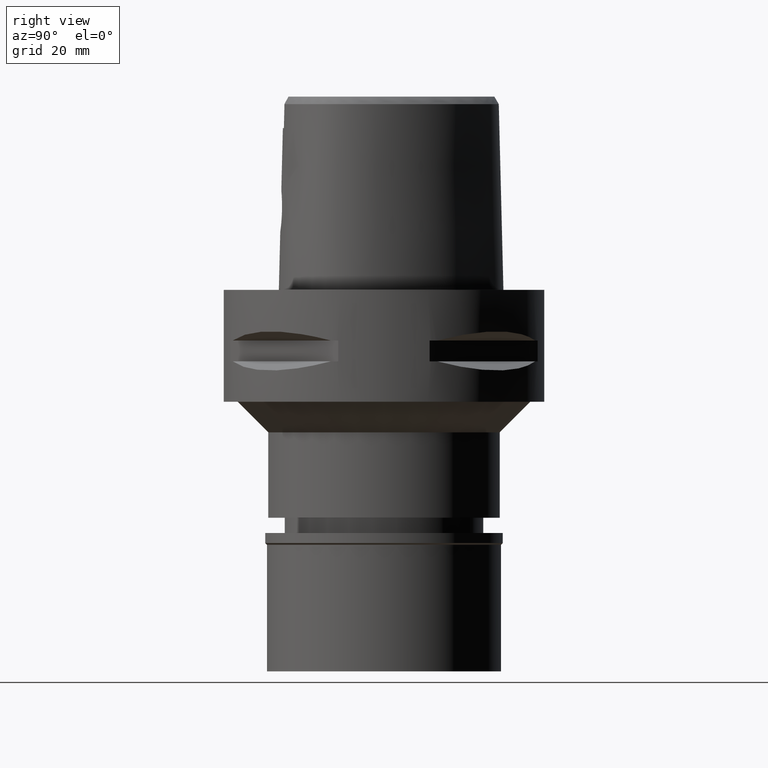
[diagram: clean part render]
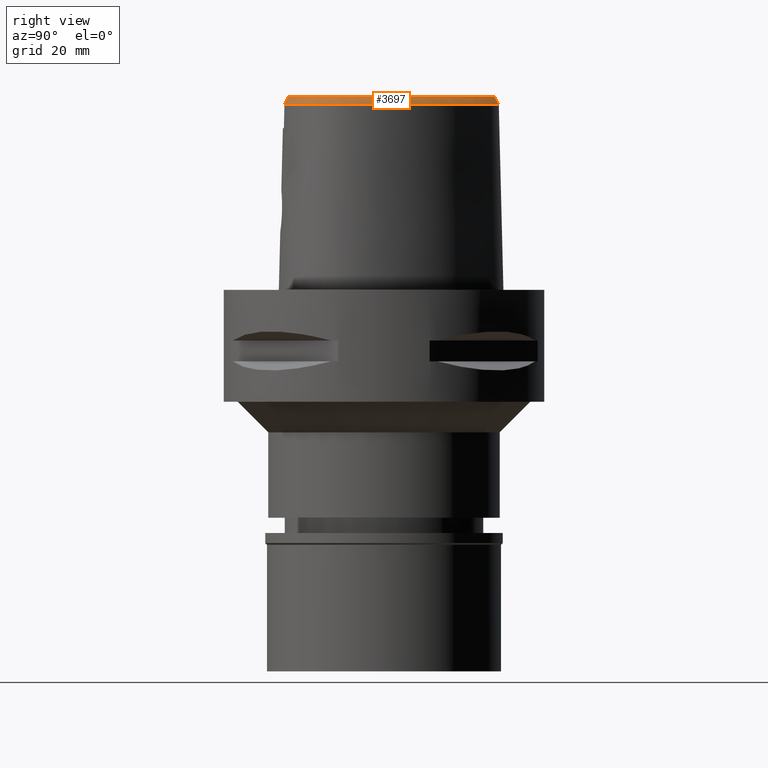
[diagram: same view with one face highlighted and labeled with its STEP entity id]
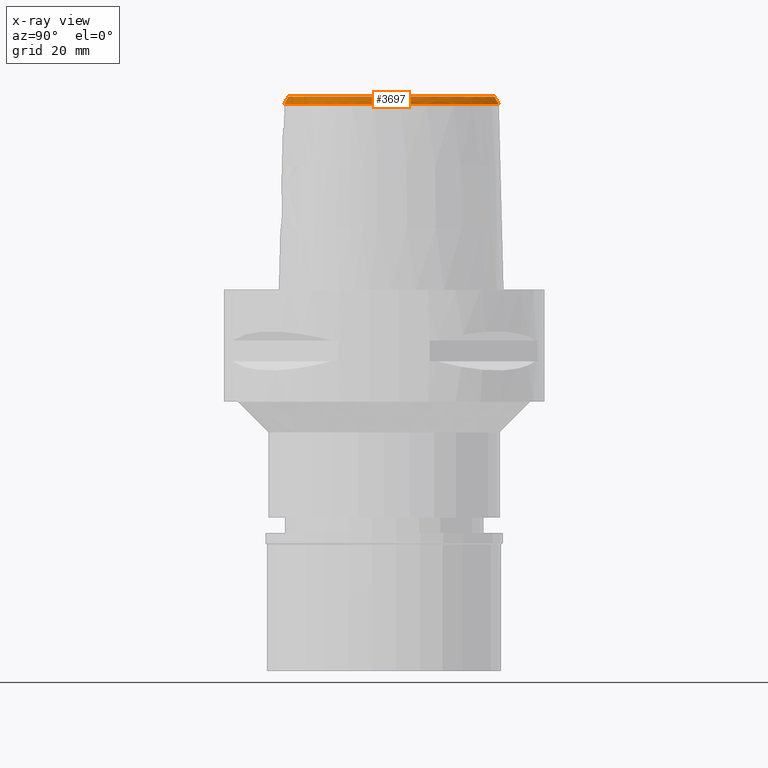
[diagram: x-ray of the same camera — body ghosted, the highlighted face saturated]
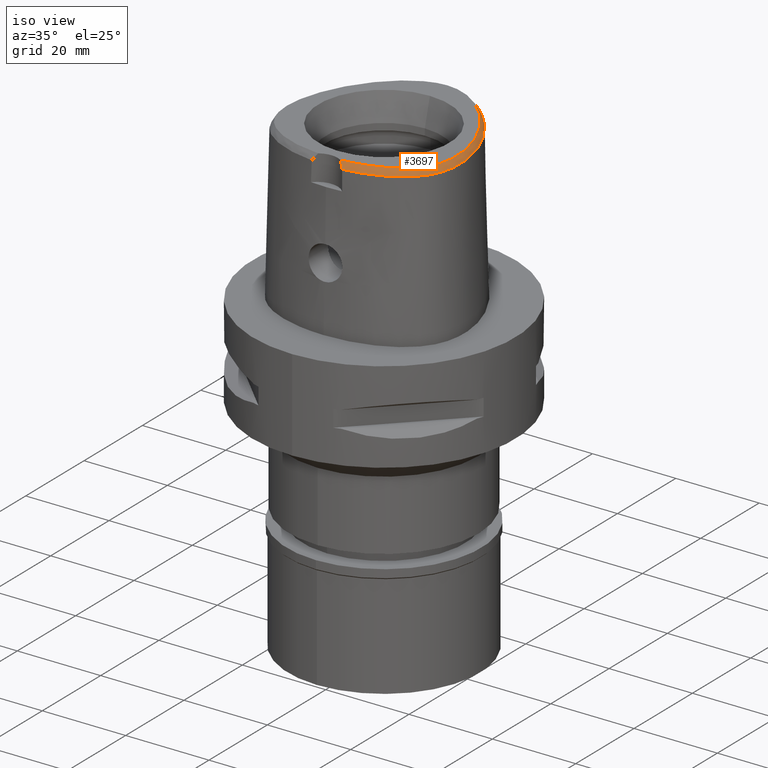
[diagram: same view with one face highlighted and labeled with its STEP entity id]
A machine part, right view. The second image highlights one B-rep face of the part: STEP entity #3697.
The next image is the same camera in x-ray: the body ghosted, the highlighted face saturated — about 0% of this face is hidden behind the body in this view.
A second angle (iso view) of the same face is appended — the face is thin or edge-on in the first view.
In plain terms, the highlighted face is a freeform B-spline surface patch.
Its self-contained STEP definition (entity closure, byte-faithful):
#13 = CARTESIAN_POINT ( 'NONE',  ( 9.524842839489272350, 17.70516372194444443, 37.99999999999801759 ) ) ;
#14 = CARTESIAN_POINT ( 'NONE',  ( 9.471721372402001293, 17.64093683689999992, 38.14078262615999648 ) ) ;
#25 = VECTOR ( 'NONE', #1910, 1000.000000000000227 ) ;
#39 = CARTESIAN_POINT ( 'NONE',  ( 8.943506038093998356, 18.93662075111999954, 36.96761958012999827 ) ) ;
#52 = CARTESIAN_POINT ( 'NONE',  ( 10.26531631301000047, -17.49315671605999967, 37.55420203895000242 ) ) ;
#59 = CARTESIAN_POINT ( 'NONE',  ( -1.463669373056000196E-11, 22.56201468012000078, 36.52186680743999858 ) ) ;
#64 = CARTESIAN_POINT ( 'NONE',  ( 4.597051437270999408, 21.76193022552000045, 36.38103846385000395 ) ) ;
#69 = CARTESIAN_POINT ( 'NONE',  ( 7.751664329830999733, -18.60205468964000275, 36.96762179697000050 ) ) ;
#82 = CARTESIAN_POINT ( 'NONE',  ( 19.54993126781647206, -9.226212439886110062, 37.99999999999429434 ) ) ;
#83 = CARTESIAN_POINT ( 'NONE',  ( 9.693055760914999652, 17.90854274288999903, 37.55420175436999841 ) ) ;
#90 = CARTESIAN_POINT ( 'NONE',  ( 3.520533512231999840, -18.62460763988000068, 38.14078268199999400 ) ) ;
#103 = CARTESIAN_POINT ( 'NONE',  ( 11.32341394162657444, -16.80569392800708073, 37.99999999998968292 ) ) ;
#110 = CARTESIAN_POINT ( 'NONE',  ( 16.53725276230999697, -13.96049793408999840, 37.55420128323000029 ) ) ;
#138 = CARTESIAN_POINT ( 'NONE',  ( 19.49712283263000145, -11.53059294735000151, 36.38103868916999772 ) ) ;
#146 = CARTESIAN_POINT ( 'NONE',  ( 3.637738219117000238, -19.56971420299000286, 36.52185956443999970 ) ) ;
#157 = CARTESIAN_POINT ( 'NONE',  ( 16.76674975263000178, -14.22119966891999887, 36.96761979151000332 ) ) ;
#163 = CARTESIAN_POINT ( 'NONE',  ( 3.637738219117000238, -19.56971420299000286, 36.52185956443999970 ) ) ;
#182 = CARTESIAN_POINT ( 'NONE',  ( 15.66942988134999837, -14.23049800799999964, 38.14078274642000110 ) ) ;
#208 = CARTESIAN_POINT ( 'NONE',  ( 14.17017414711000001, -15.27183001612999824, 38.14078271548000032 ) ) ;
#229 = CARTESIAN_POINT ( 'NONE',  ( 20.56744787855000212, -2.149473666813999539, 37.55420121531999911 ) ) ;
#251 = CARTESIAN_POINT ( 'NONE',  ( 18.48583548471999904, 5.774651732758999678, 37.55420142662999439 ) ) ;
#276 = CARTESIAN_POINT ( 'NONE',  ( 20.88061164856000218, 0.4178353032573000059, 36.38104196849000260 ) ) ;
#305 = CARTESIAN_POINT ( 'NONE',  ( 20.42078389761999802, -0.9681957962381000371, 37.55420147674000475 ) ) ;
#330 = CARTESIAN_POINT ( 'NONE',  ( 20.20009478020999794, 0.2789374243187999758, 37.55420229344999683 ) ) ;
#344 = EDGE_CURVE ( 'NONE', #3363, #1034, #4620, .T. ) ;
#359 = CARTESIAN_POINT ( 'NONE',  ( 5.167227016958999997, 20.77485208378000081, 37.55420147167000522 ) ) ;
#382 = CARTESIAN_POINT ( 'NONE',  ( 20.36412151360732281, -5.276385427453592847, 37.99999999999993605 ) ) ;
#383 = CARTESIAN_POINT ( 'NONE',  ( 1.314646726160000112, 21.52809732745000204, 38.14078280890999650 ) ) ;
#387 = CARTESIAN_POINT ( 'NONE',  ( 10.14978918589999957, -17.16566044299000282, 38.14078253627999970 ) ) ;
#403 = CARTESIAN_POINT ( 'NONE',  ( 13.33890749495810013, -15.84912955620032271, 37.99999999999144507 ) ) ;
#404 = CARTESIAN_POINT ( 'NONE',  ( 10.13572453793999806, 18.44375455487000082, 36.38104001079000227 ) ) ;
#428 = CARTESIAN_POINT ( 'NONE',  ( 14.21382211799005368, -15.34284287400429925, 37.99999999999756994 ) ) ;
#429 = CARTESIAN_POINT ( 'NONE',  ( 9.914390149427999788, 18.17614864888000170, 36.96762088258000034 ) ) ;
#434 = CARTESIAN_POINT ( 'NONE',  ( 2.131002082781999984, -19.77983292456000086, 36.38103937870999971 ) ) ;
#444 = CARTESIAN_POINT ( 'NONE',  ( 21.07429999882967664, -0.4408303635841538948, 36.52186680739944080 ) ) ;
#447 = CARTESIAN_POINT ( 'NONE',  ( 19.26272899268864336, 2.870227893749751846, 37.99999999999908340 ) ) ;
#448 = CARTESIAN_POINT ( 'NONE',  ( 5.856174692735000242, 20.05783567382999877, 38.14078270353000022 ) ) ;
#454 = FACE_OUTER_BOUND ( 'NONE', #2346, .T. ) ;
#467 = CARTESIAN_POINT ( 'NONE',  ( 16.09765529146379137, 9.909410920132016187, 37.99999999999122480 ) ) ;
#475 = CARTESIAN_POINT ( 'NONE',  ( 9.209842915832000543, -18.56675202237000022, 36.38104263363000257 ) ) ;
#499 = CARTESIAN_POINT ( 'NONE',  ( 17.90866008503000018, -13.08915887711000003, 36.96761994972999332 ) ) ;
#522 = CARTESIAN_POINT ( 'NONE',  ( 13.46462270598999922, -16.08120992309000030, 37.55420131782999960 ) ) ;
#541 = CARTESIAN_POINT ( 'NONE',  ( 0.7115193182199001098, 22.63050669691999772, 36.38103825057000051 ) ) ;
#547 = CARTESIAN_POINT ( 'NONE',  ( 20.03562683864999983, -8.618478857327998455, 37.55420132871000050 ) ) ;
#571 = CARTESIAN_POINT ( 'NONE',  ( 18.92230552145999667, -10.42918914088999927, 38.14078278352999973 ) ) ;
#599 = CARTESIAN_POINT ( 'NONE',  ( 16.31138015044999889, -15.05120669275000012, 36.38103862783000153 ) ) ;
#620 = CARTESIAN_POINT ( 'NONE',  ( 19.37022770651999792, 4.466902997800000996, 36.96761952439999988 ) ) ;
#646 = CARTESIAN_POINT ( 'NONE',  ( 20.76414739681000299, -0.9161880132973000412, 36.96762023965000310 ) ) ;
#672 = CARTESIAN_POINT ( 'NONE',  ( 15.17720735414999922, 11.21149543128999859, 38.14078267194999938 ) ) ;
#699 = CARTESIAN_POINT ( 'NONE',  ( 19.69652248392999638, 4.585738045762999704, 36.38103788092000457 ) ) ;
#722 = CARTESIAN_POINT ( 'NONE',  ( 5.451381067270999026, 21.40869701813999981, 36.38103898414000525 ) ) ;
#742 = CARTESIAN_POINT ( 'NONE',  ( 19.88562079788557924, 4.345879946636339142, 36.52186680739944080 ) ) ;
#745 = CARTESIAN_POINT ( 'NONE',  ( 0.2185816947241454866, 21.68728795389762354, 37.99999999999980815 ) ) ;
#746 = CARTESIAN_POINT ( 'NONE',  ( 2.002903192514999819, 21.42063957318000078, 38.14078275952000041 ) ) ;
#752 = CARTESIAN_POINT ( 'NONE',  ( 7.833951466691000398, -18.93943006238000137, 36.38104144471999746 ) ) ;
#765 = CARTESIAN_POINT ( 'NONE',  ( 6.760281394351544293, 19.65404668910115049, 37.99999999999160849 ) ) ;
#766 = CARTESIAN_POINT ( 'NONE',  ( 7.247020228837999234, 20.47980889998999743, 36.38103849502999765 ) ) ;
#785 = CARTESIAN_POINT ( 'NONE',  ( 2.736932690726667783, 21.34527940056988271, 37.99999999999933920 ) ) ;
#786 = CARTESIAN_POINT ( 'NONE',  ( 14.27669300615000125, 12.49849302406000007, 38.14078269633999696 ) ) ;
#801 = CARTESIAN_POINT ( 'NONE',  ( -1.463669373056000196E-11, 22.56201468012000078, 36.52186680743999858 ) ) ;
#804 = CARTESIAN_POINT ( 'NONE',  ( 13.70645019739122361, 15.04851265230568913, 36.52186680739944080 ) ) ;
#811 = CARTESIAN_POINT ( 'NONE',  ( 2.845098933833551502, -18.76733062686063036, 37.99999999999927525 ) ) ;
#812 = CARTESIAN_POINT ( 'NONE',  ( 2.716603763856999976, 21.26443422208999934, 38.14078270790000147 ) ) ;
#819 = CARTESIAN_POINT ( 'NONE',  ( 9.012071958097999769, -17.90096460868999984, 37.55420247659999688 ) ) ;
#835 = CARTESIAN_POINT ( 'NONE',  ( 19.78323211893125944, -8.541156231035669677, 37.99999999999573674 ) ) ;
#836 = CARTESIAN_POINT ( 'NONE',  ( 0.6897082663953000292, 22.28384017445999987, 36.96761976012000162 ) ) ;
#846 = ORIENTED_EDGE ( 'NONE', *, *, #2262, .T. ) ;
#856 = CARTESIAN_POINT ( 'NONE',  ( -0.4209333599620999622, 22.29232361178000232, 36.96761990631999595 ) ) ;
#861 = CARTESIAN_POINT ( 'NONE',  ( 17.12436426410000223, -13.41126772737000117, 37.55420131118999905 ) ) ;
#875 = CARTESIAN_POINT ( 'NONE',  ( 10.91891095221394004, -18.03046396093734316, 36.52186680739944080 ) ) ;
#889 = CARTESIAN_POINT ( 'NONE',  ( 20.12250387446999866, -9.440392764594999875, 36.96762020218000089 ) ) ;
#913 = CARTESIAN_POINT ( 'NONE',  ( 0.02371585249685000119, 22.30474478686999973, 36.96762012038000478 ) ) ;
#919 = CARTESIAN_POINT ( 'NONE',  ( 18.25037616999999912, -11.53839130734000129, 38.14078278347999884 ) ) ;
#931 = CARTESIAN_POINT ( 'NONE',  ( 3.012993621895999841, -19.00286489711999849, 37.57891898302000300 ) ) ;
#934 = CARTESIAN_POINT ( 'NONE',  ( 1.444312055598999889, 22.56203390916000018, 36.38103790923000247 ) ) ;
#940 = CARTESIAN_POINT ( 'NONE',  ( 16.30775577200000370, -13.69979619925000058, 38.14078277494999725 ) ) ;
#963 = CARTESIAN_POINT ( 'NONE',  ( 13.63003865100000134, -16.38658103046999770, 36.96761987165999130 ) ) ;
#988 = CARTESIAN_POINT ( 'NONE',  ( 18.80605238624000108, 5.908998787328999747, 36.96762012361000416 ) ) ;
#1012 = CARTESIAN_POINT ( 'NONE',  ( 20.31727101228999999, -4.308566532926000114, 38.14078274403000535 ) ) ;
#1034 = VERTEX_POINT ( 'NONE', #2488 ) ;
#1038 = CARTESIAN_POINT ( 'NONE',  ( 16.62205662226999792, 10.22330342703999939, 36.96761992540999842 ) ) ;
#1065 = CARTESIAN_POINT ( 'NONE',  ( 21.34047423680999955, -3.233089653883999937, 36.38103845676000248 ) ) ;
#1089 = CARTESIAN_POINT ( 'NONE',  ( 20.91306126691000244, -2.115428639382999965, 36.96761963424999919 ) ) ;
#1109 = CARTESIAN_POINT ( 'NONE',  ( 15.46641052827999907, 11.40371363683000006, 37.55420160935999974 ) ) ;
#1116 = CARTESIAN_POINT ( 'NONE',  ( 10.49637056722999873, -18.14814926218999958, 36.38104104429000785 ) ) ;
#1131 = CARTESIAN_POINT ( 'NONE',  ( 18.31883910943177440, -11.58595831187854941, 37.99999999999663913 ) ) ;
#1132 = CARTESIAN_POINT ( 'NONE',  ( 13.15528751989000078, 15.53053797997999830, 36.38103935554000401 ) ) ;
#1137 = CARTESIAN_POINT ( 'NONE',  ( 4.752993856656999583, -18.82722793462999888, 37.55420134194000070 ) ) ;
#1150 = CARTESIAN_POINT ( 'NONE',  ( 12.44125753247115185, 14.89118158853698581, 37.99999999999832312 ) ) ;
#1151 = CARTESIAN_POINT ( 'NONE',  ( 4.349666599841000014, 21.11283506819000166, 37.55420132839999781 ) ) ;
#1156 = CARTESIAN_POINT ( 'NONE',  ( 4.851462407778999619, -19.51472961481999846, 36.38103851302999914 ) ) ;
#1171 = CARTESIAN_POINT ( 'NONE',  ( 11.46587147800065232, 15.92717600802928324, 37.99999999999828759 ) ) ;
#1172 = CARTESIAN_POINT ( 'NONE',  ( 3.666192924886000348, 21.71766925750999988, 36.96762020070000432 ) ) ;
#1177 = CARTESIAN_POINT ( 'NONE',  ( 2.088299334717000022, -19.08689561082000097, 37.55420158032000444 ) ) ;
#1188 = CARTESIAN_POINT ( 'NONE',  ( 2.376843874104028753, 22.39422497744835638, 36.52186680739944080 ) ) ;
#1193 = CARTESIAN_POINT ( 'NONE',  ( 20.30478359882040706, -2.175347700950719609, 37.99999999999693046 ) ) ;
#1194 = CARTESIAN_POINT ( 'NONE',  ( 12.63787345741000046, 15.06723532645000141, 37.55420157393999858 ) ) ;
#1202 = CARTESIAN_POINT ( 'NONE',  ( 4.703759581097000542, -18.48347709452999865, 38.14078275640000015 ) ) ;
#1218 = CARTESIAN_POINT ( 'NONE',  ( 20.27923816686099912, -6.179850483268628736, 38.00000000000230216 ) ) ;
#1226 = CARTESIAN_POINT ( 'NONE',  ( 16.87987212308999929, -13.16456422413999938, 38.14078276611000007 ) ) ;
#1229 = VERTEX_POINT ( 'NONE', #3049 ) ;
#1249 = CARTESIAN_POINT ( 'NONE',  ( 19.23015999007999710, -10.59006464658000191, 37.55420125604999271 ) ) ;
#1280 = CARTESIAN_POINT ( 'NONE',  ( 15.35489610263999793, -15.32596820411999872, 36.96762052361999906 ) ) ;
#1308 = CARTESIAN_POINT ( 'NONE',  ( 19.90366479136000066, -7.788260117288000828, 38.14078276947999768 ) ) ;
#1315 = EDGE_CURVE ( 'NONE', #1229, #2504, #2330, .T. ) ;
#1331 = CARTESIAN_POINT ( 'NONE',  ( 11.42388110077999919, -17.04975665869000068, 37.55420126414999515 ) ) ;
#1355 = CARTESIAN_POINT ( 'NONE',  ( 20.41102552815000237, -7.069128171570000063, 37.55420128566999693 ) ) ;
#1375 = ORIENTED_EDGE ( 'NONE', *, *, #2960, .F. ) ;
#1380 = CARTESIAN_POINT ( 'NONE',  ( 21.01184160454999983, -4.314969936114000149, 36.96762001819999455 ) ) ;
#1405 = CARTESIAN_POINT ( 'NONE',  ( 16.32410039223999831, 10.04495485600999949, 37.55420134103999885 ) ) ;
#1435 = CARTESIAN_POINT ( 'NONE',  ( 20.99353423194999735, -3.248737816997999683, 36.96761989160999207 ) ) ;
#1459 = CARTESIAN_POINT ( 'NONE',  ( 21.09459356262000185, -7.192680958470999641, 36.38103830864000088 ) ) ;
#1482 = CARTESIAN_POINT ( 'NONE',  ( 12.37916642617000029, 14.83558399968999986, 38.14078268314000297 ) ) ;
#1486 = CARTESIAN_POINT ( 'NONE',  ( 10.38084344011999960, -17.82065298911999918, 36.96762154161999803 ) ) ;
#1502 = CARTESIAN_POINT ( 'NONE',  ( 4.255661039972736148, 20.86618068829548633, 37.99999999998954792 ) ) ;
#1503 = CARTESIAN_POINT ( 'NONE',  ( 13.87882093976000064, 14.14792960517999987, 36.96761959007999820 ) ) ;
#1511 = CARTESIAN_POINT ( 'NONE',  ( 6.246458527354000978, -18.57588013720000220, 37.55420129091999826 ) ) ;
#1527 = CARTESIAN_POINT ( 'NONE',  ( 19.94150023628155211, 0.2261566111947425073, 37.99999999999851497 ) ) ;
#1528 = CARTESIAN_POINT ( 'NONE',  ( 6.175439494885999636, 20.67472483978999875, 36.96762031512999869 ) ) ;
#1548 = CARTESIAN_POINT ( 'NONE',  ( 0.7901461619532229586, 22.56201467849932385, 36.52186680739944080 ) ) ;
#1551 = CARTESIAN_POINT ( 'NONE',  ( 7.994246761882000563, 19.60311222065000081, 36.96761993930999779 ) ) ;
#1573 = CARTESIAN_POINT ( 'NONE',  ( 17.60373714028530756, 7.099883643192943516, 37.99999999999403855 ) ) ;
#1574 = CARTESIAN_POINT ( 'NONE',  ( 2.131376811057000165, 22.10333656620000298, 36.96761990459999936 ) ) ;
#1594 = CARTESIAN_POINT ( 'NONE',  ( 5.894487344450750399, 20.13186406531990613, 37.99999999998784261 ) ) ;
#1602 = CARTESIAN_POINT ( 'NONE',  ( 11.55607568517999972, -17.37089414797999609, 36.96761974734000233 ) ) ;
#1619 = CARTESIAN_POINT ( 'NONE',  ( 1.401090279119000082, 22.21738838191999932, 36.96761954245999959 ) ) ;
#1627 = CARTESIAN_POINT ( 'NONE',  ( 19.21063616491999682, -9.833808252404999450, 38.14078274194999807 ) ) ;
#1639 = CARTESIAN_POINT ( 'NONE',  ( -0.5995097299773000099, 21.58761787087999906, 38.14078280221000483 ) ) ;
#1646 = CARTESIAN_POINT ( 'NONE',  ( 17.39093426213000271, -12.62598026658999828, 38.14078275337000434 ) ) ;
#1670 = CARTESIAN_POINT ( 'NONE',  ( 18.39123927797000135, -12.51484846746000024, 36.96762029764000346 ) ) ;
#1694 = CARTESIAN_POINT ( 'NONE',  ( 17.61334854612000100, -13.90467473383000119, 36.38103840135000411 ) ) ;
#1718 = CARTESIAN_POINT ( 'NONE',  ( 21.25867465526000188, -2.081383611953000035, 36.38103805318999662 ) ) ;
#1747 = CARTESIAN_POINT ( 'NONE',  ( 20.66455630842000346, -4.311768234519999687, 37.55420138112000217 ) ) ;
#1778 = CARTESIAN_POINT ( 'NONE',  ( 17.73070903694999956, 8.971521411081001318, 36.38103887319000052 ) ) ;
#1783 = B_SPLINE_CURVE_WITH_KNOTS ( 'NONE', 3,
 ( #59, #1548, #1188, #4175, #2608, #4152, #804, #2310, #742, #444, #3420, #3051, #3715, #3898, #3463, #3145, #2402, #2007, #4246, #875, #4571, #4644, #146 ),
 .UNSPECIFIED., .F., .F.,
 ( 4, 1, 1, 1, 1, 1, 1, 1, 1, 1, 1, 1, 1, 1, 1, 1, 1, 1, 1, 1, 4 ),
 ( 0.0000000000000000000, 0.04382683003322371262, 0.08765366006602655358, 0.1314804900989347269, 0.1753073201318429142, 0.2629609801974486794, 0.3506146402631598602, 0.4382683003288708745, 0.5259219603945819443, 0.5697487904274900483, 0.6135756204601877650, 0.6574024504930959800, 0.6793158655094974074, 0.7012292805260041950, 0.7231426955424056224, 0.7450561105588069388, 0.7888829405916100157, 0.8327097706245181197, 0.8765366006573210855, 0.9641902607230531386, 1.000000000000000000 ),
 .UNSPECIFIED. ) ;
#1803 = CARTESIAN_POINT ( 'NONE',  ( 20.54035321438000139, 0.3483863637881000064, 36.96762213096999972 ) ) ;
#1825 = CARTESIAN_POINT ( 'NONE',  ( 21.32068685618000004, -5.338276560170999829, 36.38103947666999716 ) ) ;
#1850 = CARTESIAN_POINT ( 'NONE',  ( 3.457095857736000255, 21.05523301466000063, 38.14078271914000595 ) ) ;
#1871 = CARTESIAN_POINT ( 'NONE',  ( 20.15127154947052901, -7.022178451341903660, 38.00000000000164846 ) ) ;
#1872 = CARTESIAN_POINT ( 'NONE',  ( 11.90068720453999873, 16.35669418389999663, 36.96762232084000743 ) ) ;
#1877 = CARTESIAN_POINT ( 'NONE',  ( 2.109650708749999826, -19.43336426768999914, 36.96762047952000074 ) ) ;
#1892 = CARTESIAN_POINT ( 'NONE',  ( 16.93855157777852227, -13.22377441788889030, 37.99999999999361222 ) ) ;
#1893 = CARTESIAN_POINT ( 'NONE',  ( 13.60920823709999894, 13.92907267602999966, 37.55420119624999842 ) ) ;
#1910 = DIRECTION ( 'NONE',  ( -1.168676125825014927E-11, -0.5092834681090075977, 0.8605988316927122295 ) ) ;
#1916 = CARTESIAN_POINT ( 'NONE',  ( 8.936919536467760494, -17.64796721715042338, 37.99999999999744205 ) ) ;
#1917 = CARTESIAN_POINT ( 'NONE',  ( 8.736313388909998423, 18.65791403884000133, 37.55420119194999984 ) ) ;
#1925 = CARTESIAN_POINT ( 'NONE',  ( 2.340929172657999935, -19.76689408569000150, 36.38103943098000315 ) ) ;
#1941 = CARTESIAN_POINT ( 'NONE',  ( 19.64387775268350467, 1.522048414458557763, 37.99999999999458566 ) ) ;
#1942 = CARTESIAN_POINT ( 'NONE',  ( 13.33959553442999990, 13.71021574687999944, 38.14078280242000574 ) ) ;
#1960 = CARTESIAN_POINT ( 'NONE',  ( 15.24661770199198862, 11.25762885478449959, 37.99999999999477751 ) ) ;
#1987 = CARTESIAN_POINT ( 'NONE',  ( -0.6190623920687999826, 21.93417248717999968, 37.55420119686999669 ) ) ;
#1997 = CARTESIAN_POINT ( 'NONE',  ( 18.16752299648000246, -13.32074818237000002, 36.38103854791000202 ) ) ;
#2007 = CARTESIAN_POINT ( 'NONE',  ( 16.39211273426302640, -14.95758104715435088, 36.52186680739944080 ) ) ;
#2010 = CARTESIAN_POINT ( 'NONE',  ( 0.6678972145706000285, 21.93717365199999847, 37.55420126967999295 ) ) ;
#2018 = CARTESIAN_POINT ( 'NONE',  ( 15.88341330437999943, -14.50406756958000010, 37.55420137355999799 ) ) ;
#2042 = CARTESIAN_POINT ( 'NONE',  ( 20.36772755053999617, -8.720219889252000200, 36.96761989683999872 ) ) ;
#2070 = CARTESIAN_POINT ( 'NONE',  ( 20.44783023287999768, -9.562086510107999260, 36.38103894380000014 ) ) ;
#2093 = CARTESIAN_POINT ( 'NONE',  ( 21.10751089598999997, -0.8641802303565999654, 36.38103900254999701 ) ) ;
#2106 = B_SPLINE_SURFACE_WITH_KNOTS ( 'NONE', 3, 3, ( 
 ( #2620, #1177, #1877, #434 ),
 ( #3429, #3361, #3041, #1925 ),
 ( #2661, #3019, #4465, #3820 ),
 ( #90, #4490, #4558, #3726 ),
 ( #1202, #1137, #4513, #1156 ),
 ( #4137, #1511, #2709, #4185 ),
 ( #3412, #2994, #69, #752 ),
 ( #2684, #819, #2641, #475 ),
 ( #387, #52, #1486, #1116 ),
 ( #4095, #1331, #1602, #3161 ),
 ( #2805, #3542, #3184, #4284 ),
 ( #4584, #522, #963, #2825 ),
 ( #208, #3939, #2389, #3451 ),
 ( #2437, #2364, #1280, #3865 ),
 ( #182, #2018, #3494, #599 ),
 ( #940, #110, #157, #3089 ),
 ( #1226, #861, #4661, #1694 ),
 ( #1646, #3844, #499, #1997 ),
 ( #3135, #4308, #1670, #2733 ),
 ( #919, #3476, #2469, #4206 ),
 ( #3911, #2779, #4631, #138 ),
 ( #571, #1249, #4260, #2416 ),
 ( #1627, #3115, #4685, #2754 ),
 ( #4607, #4231, #889, #2070 ),
 ( #3888, #547, #2042, #3518 ),
 ( #1308, #3262, #3566, #2591 ),
 ( #2873, #1355, #3647, #1459 ),
 ( #2895, #3288, #4067, #4335 ),
 ( #4412, #4017, #3668, #1825 ),
 ( #1012, #1747, #1380, #4706 ),
 ( #3963, #4385, #1435, #1065 ),
 ( #2492, #229, #1089, #1718 ),
 ( #4046, #305, #646, #2093 ),
 ( #4361, #330, #1803, #276 ),
 ( #3205, #4782, #2850, #2920 ),
 ( #2174, #3310, #2198, #2570 ),
 ( #3588, #3233, #620, #699 ),
 ( #4810, #251, #988, #2944 ),
 ( #4436, #2116, #4735, #2515 ),
 ( #3985, #2143, #3615, #1778 ),
 ( #4759, #1405, #1038, #2542 ),
 ( #672, #1109, #4132, #4551 ),
 ( #786, #2222, #4483, #3718 ),
 ( #1942, #1893, #1503, #3743 ),
 ( #1482, #1194, #3034, #1132 ),
 ( #3377, #2290, #1872, #3406 ),
 ( #2701, #2635, #3766, #2675 ),
 ( #14, #83, #429, #404 ),
 ( #4089, #1917, #39, #2989 ),
 ( #3791, #4832, #1551, #3690 ),
 ( #3355, #4112, #3013, #766 ),
 ( #448, #2271, #1528, #4506 ),
 ( #4157, #359, #4457, #722 ),
 ( #2966, #1151, #2249, #64 ),
 ( #1850, #4531, #1172, #2655 ),
 ( #812, #2316, #2613, #3334 ),
 ( #746, #3423, #1574, #3055 ),
 ( #383, #3177, #1619, #934 ),
 ( #2383, #2010, #836, #541 ),
 ( #3882, #4252, #913, #3904 ),
 ( #3509, #3858, #856, #3835 ),
 ( #1639, #1987, #2409, #2356 ) ),
 .UNSPECIFIED., .F., .F., .F.,
 ( 4, 1, 1, 1, 1, 1, 1, 1, 1, 1, 1, 1, 1, 1, 1, 1, 1, 1, 1, 1, 1, 1, 1, 1, 1, 1, 1, 1, 1, 1, 1, 1, 1, 1, 1, 1, 1, 1, 1, 1, 1, 1, 1, 1, 1, 1, 1, 1, 1, 1, 1, 1, 1, 1, 1, 1, 1, 1, 1, 4 ),
 ( 4, 4 ),
 ( -0.006872922983041999424, 0.0000000000000000000, 0.005521655259608000341, 0.02328019712995000115, 0.04103873900030000077, 0.05879728087063999797, 0.07655582274102000484, 0.09431436461132000626, 0.1120729064816999992, 0.1298314483520000007, 0.1475899902222999882, 0.1653485320926999791, 0.1831070739629999944, 0.2008656158334000130, 0.2186241577037000006, 0.2363826995740999914, 0.2541412414444000345, 0.2718997833148000254, 0.2896583251850999852, 0.3074168670554999760, 0.3251754089257999913, 0.3429339507961000066, 0.3606924926664999975, 0.3784510345368000128, 0.3962095764072000037, 0.4139681182775000190, 0.4317266601479000099, 0.4494852020181999697, 0.4672437438886000161, 0.4850022857588999758, 0.5027608276292000467, 0.5205193694995999820, 0.5382779113698999973, 0.5560364532403000437, 0.5737949951105999480, 0.5915535369809999944, 0.6093120788513000097, 0.6270706207217000561, 0.6448291625919999603, 0.6625877044622999756, 0.6803462463327000220, 0.6981047882029999263, 0.7158633300733999727, 0.7336218719436999880, 0.7513804138142000655, 0.7691389556844999698, 0.7868974975549000161, 0.8046560394252000314, 0.8224145812955999668, 0.8401731231658999821, 0.8579316650361999974, 0.8756902069066000438, 0.8934487487768999481, 0.9112072906472999945, 0.9289658325176000098, 0.9467243743879999451, 0.9644829162583000715, 0.9822414581287000068, 1.000000000000000000, 1.016088127153999876 ),
 ( -0.07234914401120000338, 1.072373613631999900 ),
 .UNSPECIFIED. ) ;
#2116 = CARTESIAN_POINT ( 'NONE',  ( 17.84196984678999698, 7.213439684783999439, 37.55420161720999772 ) ) ;
#2143 = CARTESIAN_POINT ( 'NONE',  ( 17.11859956812000050, 8.643395257409000720, 37.55420144112000713 ) ) ;
#2165 = CARTESIAN_POINT ( 'NONE',  ( -3.470944899489000202E-11, 21.68728795390000030, 38.00000000000000000 ) ) ;
#2174 = CARTESIAN_POINT ( 'NONE',  ( 19.18312260679000048, 2.845544546031000266, 38.14078257965999796 ) ) ;
#2198 = CARTESIAN_POINT ( 'NONE',  ( 19.84649399733000052, 3.051234410161000277, 36.96762122358000369 ) ) ;
#2222 = CARTESIAN_POINT ( 'NONE',  ( 14.55645420487999964, 12.70421394334000098, 37.55420153213999868 ) ) ;
#2248 = CARTESIAN_POINT ( 'NONE',  ( 18.99619228226719514, -10.46780014453057106, 37.99999999999899813 ) ) ;
#2249 = CARTESIAN_POINT ( 'NONE',  ( 4.473359018555999711, 21.43738264685999795, 36.96761989611999866 ) ) ;
#2262 = EDGE_CURVE ( 'NONE', #2504, #1034, #2472, .T. ) ;
#2270 = CARTESIAN_POINT ( 'NONE',  ( 13.40430406168315791, 13.76274261013324107, 38.00000000000277822 ) ) ;
#2271 = CARTESIAN_POINT ( 'NONE',  ( 6.015807093811000428, 20.36628025681000054, 37.55420150933000656 ) ) ;
#2289 = CARTESIAN_POINT ( 'NONE',  ( 19.28677546797377218, -9.867757137506041332, 37.99999999999496936 ) ) ;
#2290 = CARTESIAN_POINT ( 'NONE',  ( 11.65363204462999924, 16.11264900533999977, 37.55420237543000184 ) ) ;
#2310 = CARTESIAN_POINT ( 'NONE',  ( 17.27359236348757676, 9.972912859139668740, 36.52186680739944080 ) ) ;
#2316 = CARTESIAN_POINT ( 'NONE',  ( 2.801305690301000073, 21.60128143516999799, 37.55420149553999920 ) ) ;
#2330 = LINE ( 'NONE', #801, #25 ) ;
#2336 = CARTESIAN_POINT ( 'NONE',  ( 19.98468477323358883, -7.807876343103896666, 37.99999999999375433 ) ) ;
#2346 = EDGE_LOOP ( 'NONE', ( #1375, #4139, #846, #3454 ) ) ;
#2356 = CARTESIAN_POINT ( 'NONE',  ( -0.6581677162517001189, 22.62728171979000180, 36.38103798621000351 ) ) ;
#2364 = CARTESIAN_POINT ( 'NONE',  ( 15.15682220133999891, -15.04067782869000069, 37.55420159935999891 ) ) ;
#2383 = CARTESIAN_POINT ( 'NONE',  ( 0.6460861627460000589, 21.59050712952999973, 38.14078277923000115 ) ) ;
#2389 = CARTESIAN_POINT ( 'NONE',  ( 14.53389892633999914, -15.86359030951000193, 36.96762022758000654 ) ) ;
#2402 = CARTESIAN_POINT ( 'NONE',  ( 17.90324024157455085, -13.53935104435877079, 36.52186680739944080 ) ) ;
#2409 = CARTESIAN_POINT ( 'NONE',  ( -0.6386150541602000352, 22.28072710349000118, 36.96761959154000010 ) ) ;
#2416 = CARTESIAN_POINT ( 'NONE',  ( 19.84586892732999885, -10.91181565796000008, 36.38103820110000441 ) ) ;
#2437 = CARTESIAN_POINT ( 'NONE',  ( 14.95874830003999811, -14.75538745325000001, 38.14078267509999876 ) ) ;
#2469 = CARTESIAN_POINT ( 'NONE',  ( 18.82088762858000308, -11.93477395412999975, 36.96761972891000170 ) ) ;
#2472 = B_SPLINE_CURVE_WITH_KNOTS ( 'NONE', 3,
 ( #3689, #745, #3587, #3717, #2725, #785, #3012, #1502, #3790, #1594, #765, #3033, #4178, #13, #4131, #1171, #1150, #2270, #3813, #1960, #467, #3742, #1573, #3422, #3354, #447, #1941, #1527, #4482, #1193, #4505, #2634, #382, #1218, #1871, #2336, #835, #82, #2289, #2248, #4199, #1131, #2988, #2700, #1892, #2654, #3765, #4530, #428, #403, #3444, #103, #4577, #1916, #3376, #3405, #4111, #3078, #811, #2674 ),
 .UNSPECIFIED., .F., .F.,
 ( 4, 1, 1, 1, 1, 1, 1, 1, 1, 1, 1, 1, 1, 1, 1, 1, 1, 1, 1, 1, 1, 1, 1, 1, 1, 1, 1, 1, 1, 1, 1, 1, 1, 1, 1, 1, 1, 1, 1, 1, 1, 1, 1, 1, 1, 1, 1, 1, 1, 1, 1, 1, 1, 1, 1, 1, 1, 4 ),
 ( 0.0000000000000000000, 0.01775854187129999318, 0.03551708374169992855, 0.05327562561200005486, 0.07103416748239999023, 0.08879270935270000553, 0.1065512512231000519, 0.1243097930933999562, 0.1420683349638000026, 0.1598268768341000179, 0.1775854187044000332, 0.1953439605747999686, 0.2131025024450999839, 0.2308610443155000302, 0.2486195861857999345, 0.2663781280563000120, 0.2841366699266000273, 0.3018952117970000737, 0.3196537536672999780, 0.3374122955377000244, 0.3551708374080000397, 0.3729293792782999439, 0.3906879211486999903, 0.4084464630190000056, 0.4262050048894000520, 0.4439635467596999563, 0.4617220886301000027, 0.4794806305004000180, 0.4972391723707999533, 0.5149977142410999686, 0.5327562561113999839, 0.5505147979818000303, 0.5682733398521000456, 0.5860318817224999810, 0.6037904235927999963, 0.6215489654632000427, 0.6393075073334999470, 0.6570660492038999934, 0.6748245910742000087, 0.6925831329445000240, 0.7103416748149000703, 0.7281002166851999746, 0.7458587585556000210, 0.7636173004259000363, 0.7813758422962999717, 0.7991343841665999870, 0.8168929260370000334, 0.8346514679073000487, 0.8524100097776999840, 0.8701685516479999993, 0.8879270935183000146, 0.9056856353886799660, 0.9234441772589799813, 0.9412027191293600437, 0.9589612609997000270, 0.9767198028700500023, 0.9944783447403919840, 1.000000000000000000 ),
 .UNSPECIFIED. ) ;
#2488 = CARTESIAN_POINT ( 'NONE',  ( 2.682287482605000051, -18.78036330228999873, 38.00000000000000000 ) ) ;
#2492 = CARTESIAN_POINT ( 'NONE',  ( 20.22183449019999912, -2.183518694244000358, 38.14078279638999902 ) ) ;
#2504 = VERTEX_POINT ( 'NONE', #2165 ) ;
#2515 = CARTESIAN_POINT ( 'NONE',  ( 18.46890254580999624, 7.512273529586000365, 36.38103951267999747 ) ) ;
#2542 = CARTESIAN_POINT ( 'NONE',  ( 16.92001285230000107, 10.40165199806999929, 36.38103850977999798 ) ) ;
#2570 = CARTESIAN_POINT ( 'NONE',  ( 20.17817969260999789, 3.154079342226000282, 36.38104054555000744 ) ) ;
#2591 = CARTESIAN_POINT ( 'NONE',  ( 20.91639142310999944, -8.033457337018001354, 36.38103836259000445 ) ) ;
#2608 = CARTESIAN_POINT ( 'NONE',  ( 7.108589361577499766, 20.52412316394353553, 36.52186680739944080 ) ) ;
#2613 = CARTESIAN_POINT ( 'NONE',  ( 2.886007616745000171, 21.93812864825000020, 36.96762028317999693 ) ) ;
#2620 = CARTESIAN_POINT ( 'NONE',  ( 2.066947960684999863, -18.74042695394999924, 38.14078268112999837 ) ) ;
#2634 = CARTESIAN_POINT ( 'NONE',  ( 20.40062138794651148, -4.309334958867361287, 37.99999999999632649 ) ) ;
#2635 = CARTESIAN_POINT ( 'NONE',  ( 10.66829366077999985, 17.06056648792000274, 37.55420242930999564 ) ) ;
#2641 = CARTESIAN_POINT ( 'NONE',  ( 9.110957436965000156, -18.23385831553000003, 36.96762255510999751 ) ) ;
#2654 = CARTESIAN_POINT ( 'NONE',  ( 16.36283630828415525, -13.76236604535434438, 38.00000000000141398 ) ) ;
#2655 = CARTESIAN_POINT ( 'NONE',  ( 3.770741458462000484, 22.04888737893000084, 36.38103894147000261 ) ) ;
#2661 = CARTESIAN_POINT ( 'NONE',  ( 2.636553126508000222, -18.70194460591000052, 38.14078267216000029 ) ) ;
#2674 = CARTESIAN_POINT ( 'NONE',  ( 2.682287482605000051, -18.78036330228999873, 38.00000000000000000 ) ) ;
#2675 = CARTESIAN_POINT ( 'NONE',  ( 11.13750297786000054, 17.57265383901999911, 36.38104246190000168 ) ) ;
#2684 = CARTESIAN_POINT ( 'NONE',  ( 8.913186479231001158, -17.56807090184999964, 38.14078239808000603 ) ) ;
#2700 = CARTESIAN_POINT ( 'NONE',  ( 17.45306278053642757, -12.68156296993666210, 37.99999999999791100 ) ) ;
#2701 = CARTESIAN_POINT ( 'NONE',  ( 10.43368900223999951, 16.80452281236999923, 38.14078241302000549 ) ) ;
#2709 = CARTESIAN_POINT ( 'NONE',  ( 6.312199185099000687, -18.91686253005000040, 36.96761980930999414 ) ) ;
#2725 = CARTESIAN_POINT ( 'NONE',  ( 2.018320379028158751, 21.50256508436905634, 37.99999999999416644 ) ) ;
#2733 = CARTESIAN_POINT ( 'NONE',  ( 18.66373251318999849, -12.73024378266000234, 36.38103909349999299 ) ) ;
#2754 = CARTESIAN_POINT ( 'NONE',  ( 20.16235570546999867, -10.25815961936999976, 36.38103867919999601 ) ) ;
#2779 = CARTESIAN_POINT ( 'NONE',  ( 18.90299576321000075, -11.17054040939999915, 37.55420139045000383 ) ) ;
#2792 = CARTESIAN_POINT ( 'NONE',  ( 3.637738219117000238, -19.56971420299000286, 36.52185956443999970 ) ) ;
#2805 = CARTESIAN_POINT ( 'NONE',  ( 12.34049944753999917, -16.26340333629999790, 38.14078277400000161 ) ) ;
#2825 = CARTESIAN_POINT ( 'NONE',  ( 13.79545459602000079, -16.69195213784999865, 36.38103842547999989 ) ) ;
#2850 = CARTESIAN_POINT ( 'NONE',  ( 20.23585153876999954, 1.674104315650000174, 36.96762260540000256 ) ) ;
#2873 = CARTESIAN_POINT ( 'NONE',  ( 20.06924151091999775, -7.007351778119000230, 38.14078277418000340 ) ) ;
#2895 = CARTESIAN_POINT ( 'NONE',  ( 20.19649154181000128, -6.169777903896000559, 38.14078271859999347 ) ) ;
#2920 = CARTESIAN_POINT ( 'NONE',  ( 20.57220132894000031, 1.760499983265000123, 36.38104271249000021 ) ) ;
#2944 = CARTESIAN_POINT ( 'NONE',  ( 19.12626928775999957, 6.043345841899000703, 36.38103882058000238 ) ) ;
#2960 = EDGE_CURVE ( 'NONE', #1229, #3363, #1783, .T. ) ;
#2966 = CARTESIAN_POINT ( 'NONE',  ( 4.225974181126000317, 20.78828748952999916, 38.14078276066999962 ) ) ;
#2988 = CARTESIAN_POINT ( 'NONE',  ( 17.91165267839278741, -12.13575389398102899, 38.00000000000200373 ) ) ;
#2989 = CARTESIAN_POINT ( 'NONE',  ( 9.150698687277998289, 19.21532746339000042, 36.38103796830999670 ) ) ;
#2994 = CARTESIAN_POINT ( 'NONE',  ( 7.669377192970999957, -18.26467931691000146, 37.55420214922000355 ) ) ;
#3012 = CARTESIAN_POINT ( 'NONE',  ( 3.482188079160059235, 21.13472718027257002, 37.99999999999268852 ) ) ;
#3013 = CARTESIAN_POINT ( 'NONE',  ( 7.070665228239000122, 20.18061909863999759, 36.96761991600999409 ) ) ;
#3019 = CARTESIAN_POINT ( 'NONE',  ( 2.663837280321000200, -19.04801256243000296, 37.55420160871999968 ) ) ;
#3033 = CARTESIAN_POINT ( 'NONE',  ( 7.655962789344131991, 19.09402979100211439, 37.99999999999706546 ) ) ;
#3034 = CARTESIAN_POINT ( 'NONE',  ( 12.89658048865000062, 15.29888665322000030, 36.96762046473999419 ) ) ;
#3041 = CARTESIAN_POINT ( 'NONE',  ( 2.317461785360000359, -19.42055582668000113, 36.96762051284999728 ) ) ;
#3049 = CARTESIAN_POINT ( 'NONE',  ( -1.463669373056000196E-11, 22.56201468012000078, 36.52186680743999858 ) ) ;
#3051 = CARTESIAN_POINT ( 'NONE',  ( 21.14970177531143491, -6.717195943318928997, 36.52186680739944080 ) ) ;
#3055 = CARTESIAN_POINT ( 'NONE',  ( 2.195613620328000337, 22.44468506269999963, 36.38103847712999794 ) ) ;
#3078 = CARTESIAN_POINT ( 'NONE',  ( 3.529311563348981551, -18.70747079909929411, 37.99999999999354117 ) ) ;
#3089 = CARTESIAN_POINT ( 'NONE',  ( 16.99624674293999860, -14.48190140376000024, 36.38103829979000636 ) ) ;
#3115 = CARTESIAN_POINT ( 'NONE',  ( 19.52787601177000099, -9.975258708060000146, 37.55420138769999738 ) ) ;
#3135 = CARTESIAN_POINT ( 'NONE',  ( 17.84625280752999998, -12.08405783705999958, 38.14078270593000042 ) ) ;
#3145 = CARTESIAN_POINT ( 'NONE',  ( 18.90964962507426250, -12.28759713487095695, 36.52186680739944080 ) ) ;
#3161 = CARTESIAN_POINT ( 'NONE',  ( 11.68827026956999937, -17.69203163727999950, 36.38103823052000507 ) ) ;
#3177 = CARTESIAN_POINT ( 'NONE',  ( 1.357868502640000141, 21.87274285468000201, 37.55420117567999228 ) ) ;
#3184 = CARTESIAN_POINT ( 'NONE',  ( 12.63819879114999978, -16.89094730105999886, 36.96761979838999679 ) ) ;
#3205 = CARTESIAN_POINT ( 'NONE',  ( 19.56315195842999799, 1.501312980418999965, 38.14078239122000014 ) ) ;
#3233 = CARTESIAN_POINT ( 'NONE',  ( 19.04393292912000035, 4.348067949837000512, 37.55420116788999252 ) ) ;
#3262 = CARTESIAN_POINT ( 'NONE',  ( 20.24124033526999966, -7.869992523864000056, 37.55420130051999905 ) ) ;
#3288 = CARTESIAN_POINT ( 'NONE',  ( 20.54126126789999773, -6.211746025606999844, 37.55420146167000439 ) ) ;
#3310 = CARTESIAN_POINT ( 'NONE',  ( 19.51480830206000050, 2.948389478095999827, 37.55420190162000438 ) ) ;
#3334 = CARTESIAN_POINT ( 'NONE',  ( 2.970709543189000268, 22.27497586132999885, 36.38103907082000177 ) ) ;
#3354 = CARTESIAN_POINT ( 'NONE',  ( 18.79595068776491829, 4.257753965102195615, 37.99999999999799627 ) ) ;
#3355 = CARTESIAN_POINT ( 'NONE',  ( 6.717955227040000032, 19.58223949595999969, 38.14078275795999673 ) ) ;
#3361 = CARTESIAN_POINT ( 'NONE',  ( 2.293994398060999806, -19.07421756765999987, 37.55420159471000119 ) ) ;
#3363 = VERTEX_POINT ( 'NONE', #163 ) ;
#3376 = CARTESIAN_POINT ( 'NONE',  ( 7.606839420238075355, -18.00827588386463773, 37.99999999999268141 ) ) ;
#3377 = CARTESIAN_POINT ( 'NONE',  ( 11.40657688471999975, 15.86860382678000114, 38.14078243003000068 ) ) ;
#3405 = CARTESIAN_POINT ( 'NONE',  ( 6.196495988004116384, -18.31673538865287654, 38.00000000000008527 ) ) ;
#3406 = CARTESIAN_POINT ( 'NONE',  ( 12.14774236445000000, 16.60073936246000059, 36.38104226624999882 ) ) ;
#3412 = CARTESIAN_POINT ( 'NONE',  ( 7.587090056112000269, -17.92730394417000284, 38.14078250145999505 ) ) ;
#3420 = CARTESIAN_POINT ( 'NONE',  ( 21.32871516739875872, -4.105831245034154975, 36.52186680739944080 ) ) ;
#3422 = CARTESIAN_POINT ( 'NONE',  ( 18.24247239569358214, 5.672548708072413071, 37.99999999999823075 ) ) ;
#3423 = CARTESIAN_POINT ( 'NONE',  ( 2.067140001785999992, 21.76198806968999833, 37.55420133206000344 ) ) ;
#3429 = CARTESIAN_POINT ( 'NONE',  ( 2.270527010761999698, -18.72787930864999950, 38.14078267657999533 ) ) ;
#3444 = CARTESIAN_POINT ( 'NONE',  ( 12.37622418509699784, -16.33871033286247254, 37.99999999999003109 ) ) ;
#3451 = CARTESIAN_POINT ( 'NONE',  ( 14.71576131594999914, -16.15947045619000022, 36.38103898362999900 ) ) ;
#3454 = ORIENTED_EDGE ( 'NONE', *, *, #344, .F. ) ;
#3463 = CARTESIAN_POINT ( 'NONE',  ( 19.55745538000950035, -11.29150212657266650, 36.52186680739944080 ) ) ;
#3476 = CARTESIAN_POINT ( 'NONE',  ( 18.53563189928999932, -11.73658263074000097, 37.55420125620000249 ) ) ;
#3494 = CARTESIAN_POINT ( 'NONE',  ( 16.09739672741000049, -14.77763713116999966, 36.96762000068999754 ) ) ;
#3505 = CARTESIAN_POINT ( 'NONE',  ( 2.793085114253999635, -18.85079379708000147, 37.86642507018000003 ) ) ;
#3509 = CARTESIAN_POINT ( 'NONE',  ( -0.3947114620896000070, 21.59844879465000034, 38.14078275929000483 ) ) ;
#3518 = CARTESIAN_POINT ( 'NONE',  ( 20.69982826242000229, -8.821960921175000081, 36.38103846497000404 ) ) ;
#3542 = CARTESIAN_POINT ( 'NONE',  ( 12.48934911935000081, -16.57717531868000194, 37.55420128619000053 ) ) ;
#3566 = CARTESIAN_POINT ( 'NONE',  ( 20.57881587918999955, -7.951724930440998484, 36.96761983154999598 ) ) ;
#3587 = CARTESIAN_POINT ( 'NONE',  ( 0.6513209347956558926, 21.67370899611487545, 38.00000000000193268 ) ) ;
#3588 = CARTESIAN_POINT ( 'NONE',  ( 18.71763815171999923, 4.229232901875000117, 38.14078281137000204 ) ) ;
#3615 = CARTESIAN_POINT ( 'NONE',  ( 17.42465430253999870, 8.807458334245000131, 36.96762015715000160 ) ) ;
#3647 = CARTESIAN_POINT ( 'NONE',  ( 20.75280954539000078, -7.130904565019999808, 36.96761979715000734 ) ) ;
#3668 = CARTESIAN_POINT ( 'NONE',  ( 20.97410452164999839, -5.315852192164999934, 36.96762054198000413 ) ) ;
#3689 = CARTESIAN_POINT ( 'NONE',  ( -3.470944899489000202E-11, 21.68728795390000030, 38.00000000000000000 ) ) ;
#3690 = CARTESIAN_POINT ( 'NONE',  ( 8.186454163384000893, 19.89236450246000132, 36.38103853155999445 ) ) ;
#3697 = ADVANCED_FACE ( 'NONE', ( #454 ), #2106, .F. ) ;
#3715 = CARTESIAN_POINT ( 'NONE',  ( 20.67704204633717424, -8.734985285293443980, 36.52186680739944080 ) ) ;
#3717 = CARTESIAN_POINT ( 'NONE',  ( 1.325020189552458261, 21.61081414409365564, 37.99999999999840838 ) ) ;
#3718 = CARTESIAN_POINT ( 'NONE',  ( 15.11597660233999996, 13.11565578191000014, 36.38103920374000211 ) ) ;
#3726 = CARTESIAN_POINT ( 'NONE',  ( 3.630256643927999960, -19.66037346196000257, 36.38103936859000243 ) ) ;
#3742 = CARTESIAN_POINT ( 'NONE',  ( 16.88599964843685797, 8.518708218770699503, 37.99999999999477751 ) ) ;
#3743 = CARTESIAN_POINT ( 'NONE',  ( 14.14843364242999968, 14.36678653431999919, 36.38103798390999799 ) ) ;
#3765 = CARTESIAN_POINT ( 'NONE',  ( 15.72078707640712025, -14.29615620309216162, 37.99999999999828759 ) ) ;
#3766 = CARTESIAN_POINT ( 'NONE',  ( 10.90289831932000020, 17.31661016346999915, 36.96762244560999733 ) ) ;
#3790 = CARTESIAN_POINT ( 'NONE',  ( 5.059249257021386725, 20.53399274679239994, 37.99999999999316458 ) ) ;
#3791 = CARTESIAN_POINT ( 'NONE',  ( 7.609831958877999902, 19.02460765705000156, 38.14078275479000268 ) ) ;
#3813 = CARTESIAN_POINT ( 'NONE',  ( 14.34383722811421791, 12.54786717290382114, 37.99999999999801048 ) ) ;
#3820 = CARTESIAN_POINT ( 'NONE',  ( 2.718405587947999802, -19.74014847547000073, 36.38103948184000558 ) ) ;
#3835 = CARTESIAN_POINT ( 'NONE',  ( -0.4340443088982999797, 22.63926102035000198, 36.38103847984000794 ) ) ;
#3844 = CARTESIAN_POINT ( 'NONE',  ( 17.64979717357999789, -12.85756957184999827, 37.55420135154999883 ) ) ;
#3858 = CARTESIAN_POINT ( 'NONE',  ( -0.4078224110258000246, 21.94538620322000000, 37.55420133279999817 ) ) ;
#3865 = CARTESIAN_POINT ( 'NONE',  ( 15.55297000393999873, -15.61125857955999940, 36.38103944787000188 ) ) ;
#3879 = CARTESIAN_POINT ( 'NONE',  ( 2.682287482605000051, -18.78036330228999873, 38.00000000000000000 ) ) ;
#3882 = CARTESIAN_POINT ( 'NONE',  ( 0.02240733977961999884, 21.61007672436000249, 38.14078273009999975 ) ) ;
#3888 = CARTESIAN_POINT ( 'NONE',  ( 19.70352612677000081, -8.516737825405000351, 38.14078276058000228 ) ) ;
#3898 = CARTESIAN_POINT ( 'NONE',  ( 20.09619608768483801, -10.23243839429832924, 36.52186680739944080 ) ) ;
#3904 = CARTESIAN_POINT ( 'NONE',  ( 0.02437010885546999836, 22.65207881813000057, 36.38103881551000285 ) ) ;
#3911 = CARTESIAN_POINT ( 'NONE',  ( 18.60593222849000128, -10.99051414042000019, 38.14078274108999977 ) ) ;
#3939 = CARTESIAN_POINT ( 'NONE',  ( 14.35203653673000090, -15.56771016281999920, 37.55420147152999988 ) ) ;
#3963 = CARTESIAN_POINT ( 'NONE',  ( 20.29965422221999916, -3.280034143227000154, 38.14078276128999789 ) ) ;
#3985 = CARTESIAN_POINT ( 'NONE',  ( 16.81254483371000319, 8.479332180573999622, 38.14078272508000111 ) ) ;
#4017 = CARTESIAN_POINT ( 'NONE',  ( 20.62752218712000030, -5.293427824159000039, 37.55420160729000401 ) ) ;
#4046 = CARTESIAN_POINT ( 'NONE',  ( 20.07742039843999748, -1.020203579179000064, 38.14078271383999663 ) ) ;
#4067 = CARTESIAN_POINT ( 'NONE',  ( 20.88603099398999774, -6.253714147318999217, 36.96762020474000110 ) ) ;
#4089 = CARTESIAN_POINT ( 'NONE',  ( 8.529120739725001954, 18.37920732655999956, 38.14078280377000141 ) ) ;
#4095 = CARTESIAN_POINT ( 'NONE',  ( 11.29168651638999954, -16.72861916938999727, 38.14078278096000219 ) ) ;
#4111 = CARTESIAN_POINT ( 'NONE',  ( 4.715576077242499942, -18.56597918135543424, 37.99999999999423750 ) ) ;
#4112 = CARTESIAN_POINT ( 'NONE',  ( 6.894310227638999145, 19.88142929729999864, 37.55420133698999763 ) ) ;
#4131 = CARTESIAN_POINT ( 'NONE',  ( 10.48999540691069043, 16.86597469869914789, 38.00000000000226663 ) ) ;
#4132 = CARTESIAN_POINT ( 'NONE',  ( 15.75561370241000070, 11.59593184236999974, 36.96762054675999565 ) ) ;
#4137 = CARTESIAN_POINT ( 'NONE',  ( 6.180717869609999582, -18.23489774434999688, 38.14078277251999793 ) ) ;
#4139 = ORIENTED_EDGE ( 'NONE', *, *, #1315, .T. ) ;
#4152 = CARTESIAN_POINT ( 'NONE',  ( 10.15538781006728897, 18.47129526702461533, 36.52186680739944080 ) ) ;
#4157 = CARTESIAN_POINT ( 'NONE',  ( 5.025149991803999683, 20.45792961660000131, 38.14078271542999943 ) ) ;
#4175 = CARTESIAN_POINT ( 'NONE',  ( 4.757642236484853626, 21.67478320247982282, 36.52186680739944080 ) ) ;
#4178 = CARTESIAN_POINT ( 'NONE',  ( 8.578848111817270805, 18.44609846599318814, 37.99999999999675282 ) ) ;
#4185 = CARTESIAN_POINT ( 'NONE',  ( 6.377939842843000307, -19.25784492290999950, 36.38103832771000157 ) ) ;
#4199 = CARTESIAN_POINT ( 'NONE',  ( 18.67722910598126873, -11.03372143227696611, 38.00000000000138556 ) ) ;
#4206 = CARTESIAN_POINT ( 'NONE',  ( 19.10614335786999973, -12.13296527752000031, 36.38103820163000535 ) ) ;
#4231 = CARTESIAN_POINT ( 'NONE',  ( 19.79717751604999876, -9.318699019082000490, 37.55420146056000164 ) ) ;
#4246 = CARTESIAN_POINT ( 'NONE',  ( 14.22011350745980174, -16.41829354688602294, 36.52186680739944080 ) ) ;
#4252 = CARTESIAN_POINT ( 'NONE',  ( 0.02306159613823000054, 21.95741075561999978, 37.55420142523999516 ) ) ;
#4260 = CARTESIAN_POINT ( 'NONE',  ( 19.53801445869999753, -10.75094015227000099, 36.96761972858000433 ) ) ;
#4284 = CARTESIAN_POINT ( 'NONE',  ( 12.78704846296000142, -17.20471928342999846, 36.38103831058000281 ) ) ;
#4308 = CARTESIAN_POINT ( 'NONE',  ( 18.11874604275000422, -12.29945315225999991, 37.55420150179000416 ) ) ;
#4335 = CARTESIAN_POINT ( 'NONE',  ( 21.23080072008000130, -6.295682269030000278, 36.38103894781000491 ) ) ;
#4348 = CARTESIAN_POINT ( 'NONE',  ( 3.538114192844000083, -19.46406524270999938, 36.71722081328000087 ) ) ;
#4361 = CARTESIAN_POINT ( 'NONE',  ( 19.85983634602999715, 0.2094884848496000040, 38.14078245592000371 ) ) ;
#4385 = CARTESIAN_POINT ( 'NONE',  ( 20.64659422708000136, -3.264385980111999874, 37.55420132644999853 ) ) ;
#4412 = CARTESIAN_POINT ( 'NONE',  ( 20.28093985258999865, -5.271003456152000055, 38.14078267261000121 ) ) ;
#4436 = CARTESIAN_POINT ( 'NONE',  ( 17.52850349728999646, 7.064022762382999865, 38.14078266946999918 ) ) ;
#4457 = CARTESIAN_POINT ( 'NONE',  ( 5.309304042114999511, 21.09177455096000031, 36.96762022791000390 ) ) ;
#4465 = CARTESIAN_POINT ( 'NONE',  ( 2.691121434133999735, -19.39408051895000185, 36.96762054527999908 ) ) ;
#4482 = CARTESIAN_POINT ( 'NONE',  ( 20.15982952132073791, -1.007721426051609415, 38.00000000000179057 ) ) ;
#4483 = CARTESIAN_POINT ( 'NONE',  ( 14.83621540360999980, 12.90993486262000012, 36.96762036794000039 ) ) ;
#4490 = CARTESIAN_POINT ( 'NONE',  ( 3.557107889463999584, -18.96986291390999924, 37.55420157753000865 ) ) ;
#4505 = CARTESIAN_POINT ( 'NONE',  ( 20.38292172607824426, -3.276278498261612881, 37.99999999999291589 ) ) ;
#4506 = CARTESIAN_POINT ( 'NONE',  ( 6.335071895961999822, 20.98316942277000052, 36.38103912092000058 ) ) ;
#4513 = CARTESIAN_POINT ( 'NONE',  ( 4.802228132217999601, -19.17097877471999823, 36.96761992747999415 ) ) ;
#4530 = CARTESIAN_POINT ( 'NONE',  ( 15.00628712263076636, -14.82385870794760052, 37.99999999998888711 ) ) ;
#4531 = CARTESIAN_POINT ( 'NONE',  ( 3.561644391310999858, 21.38645113609000248, 37.55420145992000158 ) ) ;
#4551 = CARTESIAN_POINT ( 'NONE',  ( 16.04481687654000055, 11.78815004790000032, 36.38103948417000311 ) ) ;
#4558 = CARTESIAN_POINT ( 'NONE',  ( 3.593682266696000216, -19.31511818793000046, 36.96762047306000198 ) ) ;
#4571 = CARTESIAN_POINT ( 'NONE',  ( 7.300578979384747313, -19.07170738130853849, 36.52186680739944080 ) ) ;
#4577 = CARTESIAN_POINT ( 'NONE',  ( 10.17751632998136557, -17.24426134458478543, 37.99999999999046452 ) ) ;
#4584 = CARTESIAN_POINT ( 'NONE',  ( 13.29920676098000065, -15.77583881570999935, 38.14078276400999812 ) ) ;
#4607 = CARTESIAN_POINT ( 'NONE',  ( 19.47185115763999974, -9.197005273568999328, 38.14078271894000238 ) ) ;
#4620 = B_SPLINE_CURVE_WITH_KNOTS ( 'NONE', 3,
 ( #2792, #4348, #4671, #931, #3505, #3879 ),
 .UNSPECIFIED., .F., .F.,
 ( 4, 1, 1, 4 ),
 ( 0.0000000000000000000, 0.3333333333333000081, 0.6666666666667000474, 1.000000000000000000 ),
 .UNSPECIFIED. ) ;
#4631 = CARTESIAN_POINT ( 'NONE',  ( 19.20005929792000288, -11.35056667837999989, 36.96762003981000078 ) ) ;
#4644 = CARTESIAN_POINT ( 'NONE',  ( 4.467522181836944384, -19.48130276147360007, 36.52186680739944080 ) ) ;
#4661 = CARTESIAN_POINT ( 'NONE',  ( 17.36885640510999806, -13.65797123059999940, 36.96761985626999802 ) ) ;
#4671 = CARTESIAN_POINT ( 'NONE',  ( 3.332999305682999847, -19.26501196174000086, 37.08724432268000015 ) ) ;
#4685 = CARTESIAN_POINT ( 'NONE',  ( 19.84511585862000160, -10.11670916371000040, 36.96762003344999670 ) ) ;
#4706 = CARTESIAN_POINT ( 'NONE',  ( 21.35912690066999886, -4.318171637707999722, 36.38103865528000114 ) ) ;
#4735 = CARTESIAN_POINT ( 'NONE',  ( 18.15543619629999839, 7.362856607184999902, 36.96762056493999893 ) ) ;
#4759 = CARTESIAN_POINT ( 'NONE',  ( 16.02614416219999782, 9.866606284985000030, 38.14078275668000373 ) ) ;
#4782 = CARTESIAN_POINT ( 'NONE',  ( 19.89950174859999876, 1.587708648033999914, 37.55420249830999779 ) ) ;
#4810 = CARTESIAN_POINT ( 'NONE',  ( 18.16561858318999967, 5.640304678188000409, 38.14078272965999616 ) ) ;
#4832 = CARTESIAN_POINT ( 'NONE',  ( 7.802039360379999344, 19.31385993885000119, 37.55420134705000379 ) ) ;